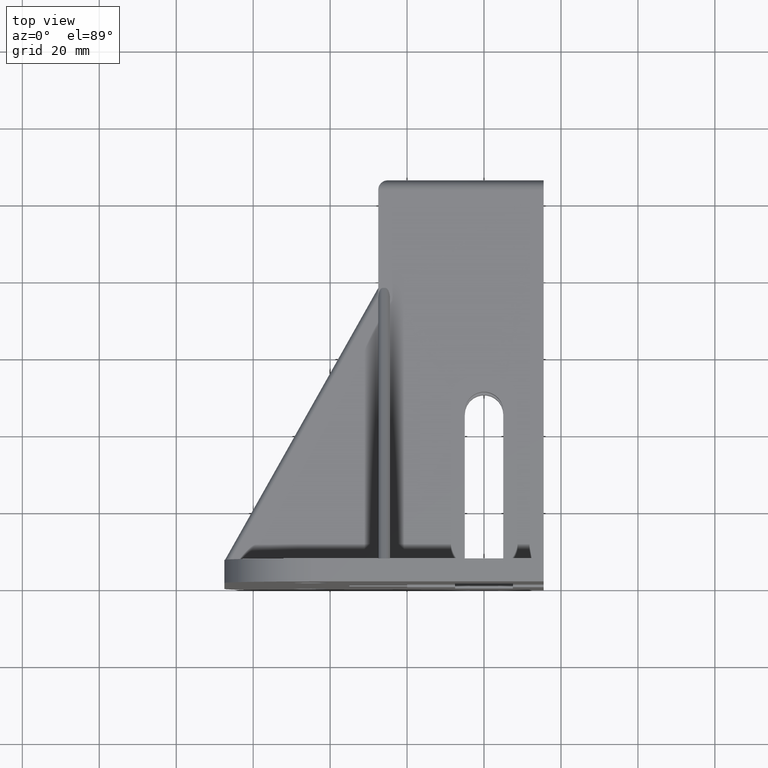
[diagram: clean part render]
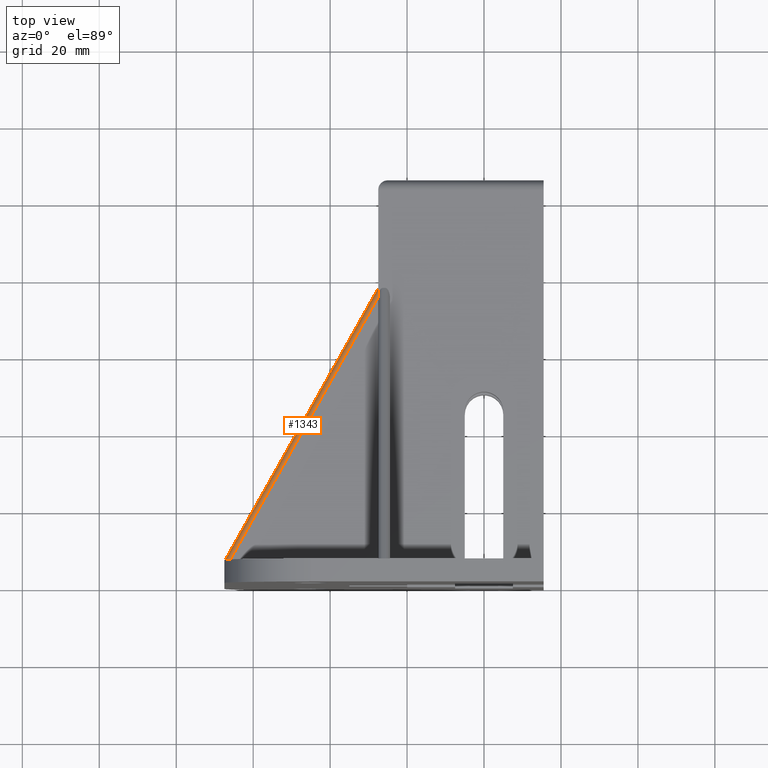
[diagram: same view with one face highlighted and labeled with its STEP entity id]
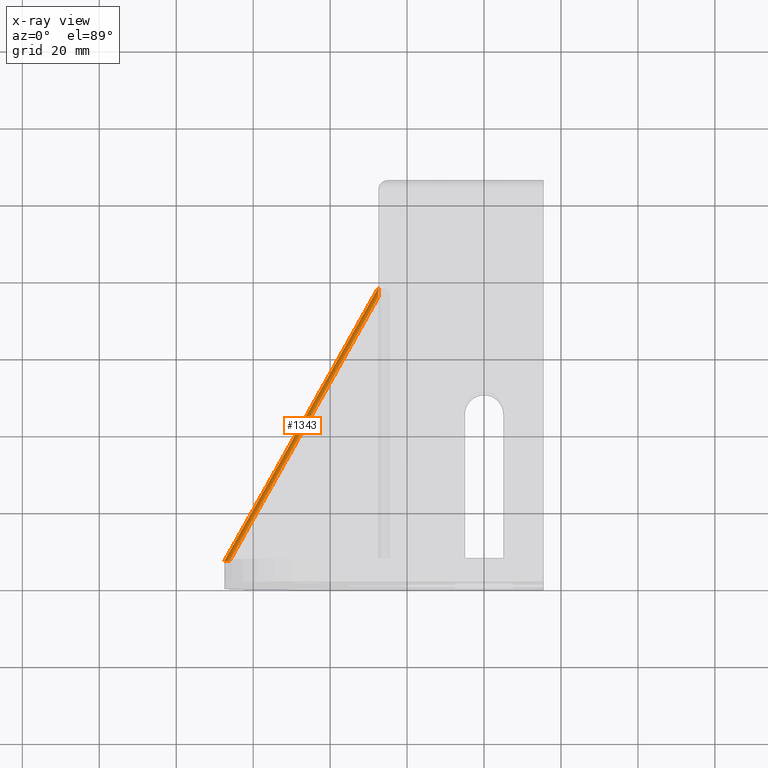
[diagram: x-ray of the same camera — body ghosted, the highlighted face saturated]
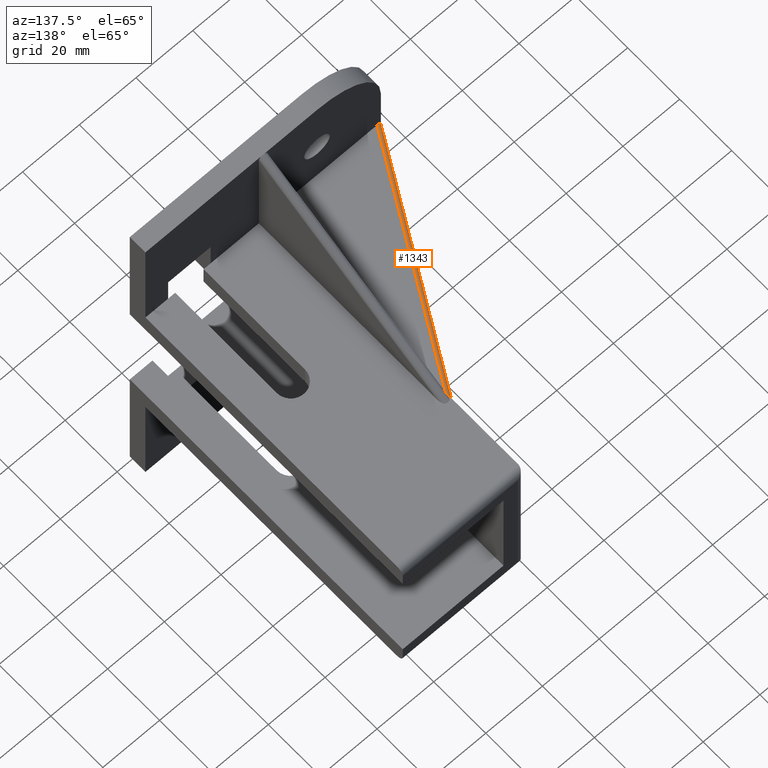
[diagram: same view with one face highlighted and labeled with its STEP entity id]
A machine part, top view. The second image highlights one B-rep face of the part: STEP entity #1343.
The next image is the same camera in x-ray: the body ghosted, the highlighted face saturated — about 1% of this face is hidden behind the body in this view.
A second angle (auxiliary view) of the same face is appended — the face is thin or edge-on in the first view.
In plain terms, the highlighted cylindrical surface (edge-blend (fillet) strip) has radius 1.2 mm, axis along (0.4908, 0.8712, 0).
Its self-contained STEP definition (entity closure, byte-faithful):
#21=ELLIPSE('',#1390,2.44476992782624,1.20000000000027);
#31=ELLIPSE('',#1418,1.37733517060658,1.20000000000068);
#130=LINE('',#2073,#291);
#168=LINE('',#2160,#329);
#291=VECTOR('',#1644,78.6862745894892);
#329=VECTOR('',#1726,81.4923309275173);
#456=FACE_OUTER_BOUND('',#531,.T.);
#531=EDGE_LOOP('',(#1160,#1161,#1162,#1163));
#624=VERTEX_POINT('',#1952);
#625=VERTEX_POINT('',#1954);
#671=VERTEX_POINT('',#2072);
#689=VERTEX_POINT('',#2119);
#751=EDGE_CURVE('',#624,#625,#21,.T.);
#813=EDGE_CURVE('',#625,#671,#130,.T.);
#838=EDGE_CURVE('',#671,#689,#31,.T.);
#861=EDGE_CURVE('',#689,#624,#168,.T.);
#1160=ORIENTED_EDGE('',*,*,#751,.F.);
#1161=ORIENTED_EDGE('',*,*,#861,.F.);
#1162=ORIENTED_EDGE('',*,*,#838,.F.);
#1163=ORIENTED_EDGE('',*,*,#813,.F.);
#1293=CYLINDRICAL_SURFACE('',#1444,1.2);
#1343=ADVANCED_FACE('',(#456),#1293,.T.);
#1390=AXIS2_PLACEMENT_3D('',#1955,#1553,#1554);
#1418=AXIS2_PLACEMENT_3D('',#2120,#1682,#1683);
#1444=AXIS2_PLACEMENT_3D('',#2186,#1765,#1766);
#1553=DIRECTION('center_axis',(1.,-2.03686350888284E-15,-2.26534359550875E-14));
#1554=DIRECTION('ref_axis',(2.0368635088864E-15,1.,1.57357089905763E-13));
#1644=DIRECTION('',(-0.490843733940776,-0.871247627744877,0.));
#1682=DIRECTION('center_axis',(-9.35568679269569E-15,-1.,2.27656798207337E-14));
#1683=DIRECTION('ref_axis',(1.,-9.35568679273111E-15,-1.55603965690324E-12));
#1726=DIRECTION('',(0.490843733940776,0.871247627744877,0.));
#1765=DIRECTION('center_axis',(0.490843733940776,0.871247627744877,0.));
#1766=DIRECTION('ref_axis',(-0.871247627744877,0.490843733940776,0.));
#1952=CARTESIAN_POINT('',(-27.5,77.,26.3));
#1954=CARTESIAN_POINT('',(-27.5,74.5552300721745,27.5));
#1955=CARTESIAN_POINT('Origin',(-27.5,74.5552300721737,26.2999999999997));
#2072=CARTESIAN_POINT('',(-66.1226648293941,6.,27.5));
#2073=CARTESIAN_POINT('',(-66.4545028467061,5.41098751927108,27.5));
#2119=CARTESIAN_POINT('',(-67.5,5.99999999999999,26.3));
#2120=CARTESIAN_POINT('Origin',(-66.1226648293934,5.99999999999997,26.2999999999993));
#2160=CARTESIAN_POINT('',(-27.5,77.,26.3));
#2186=CARTESIAN_POINT('Origin',(-1.22938614741385,121.185569660515,26.3));